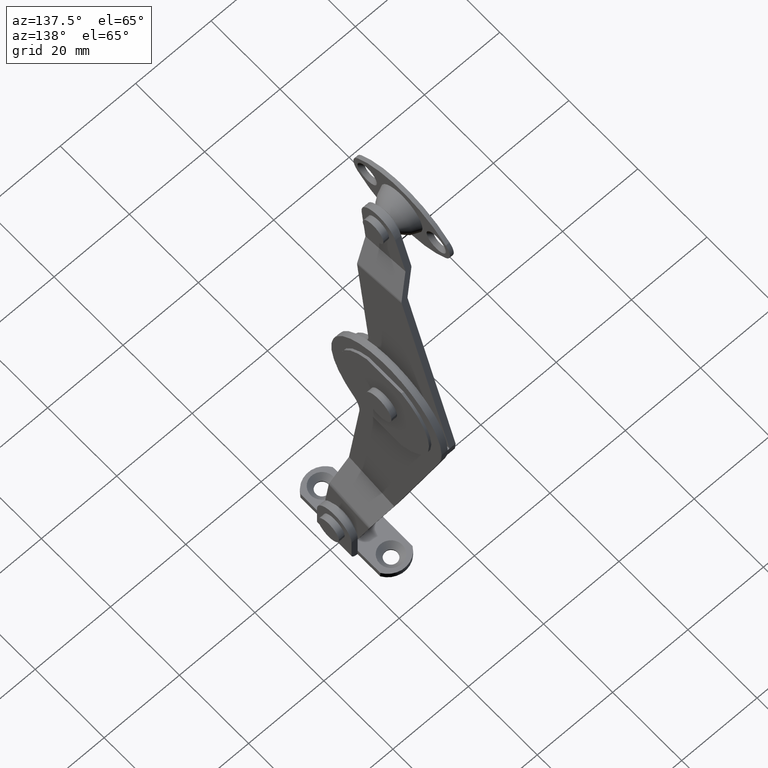
[diagram: clean part render]
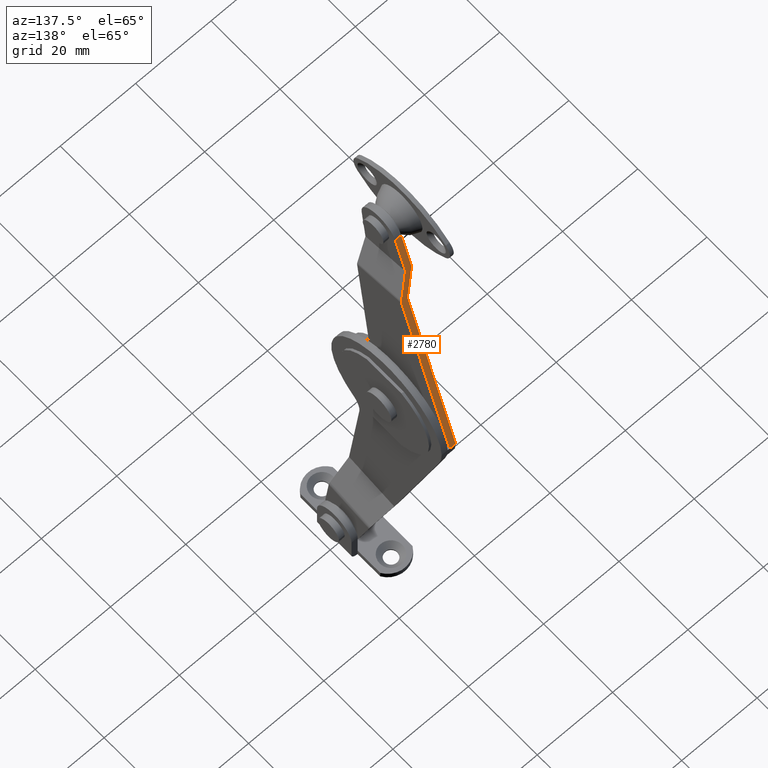
[diagram: same view with one face highlighted and labeled with its STEP entity id]
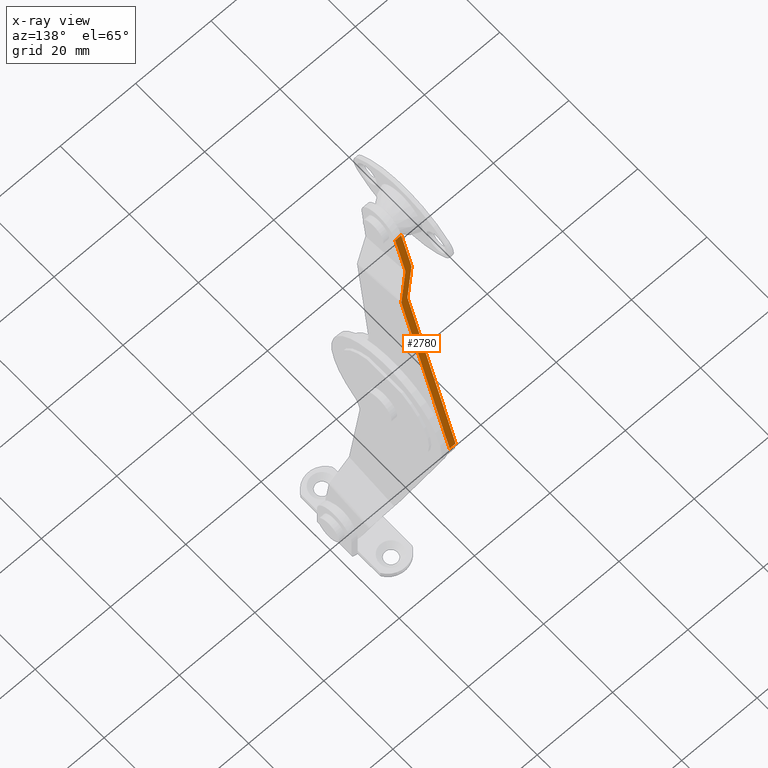
[diagram: x-ray of the same camera — body ghosted, the highlighted face saturated]
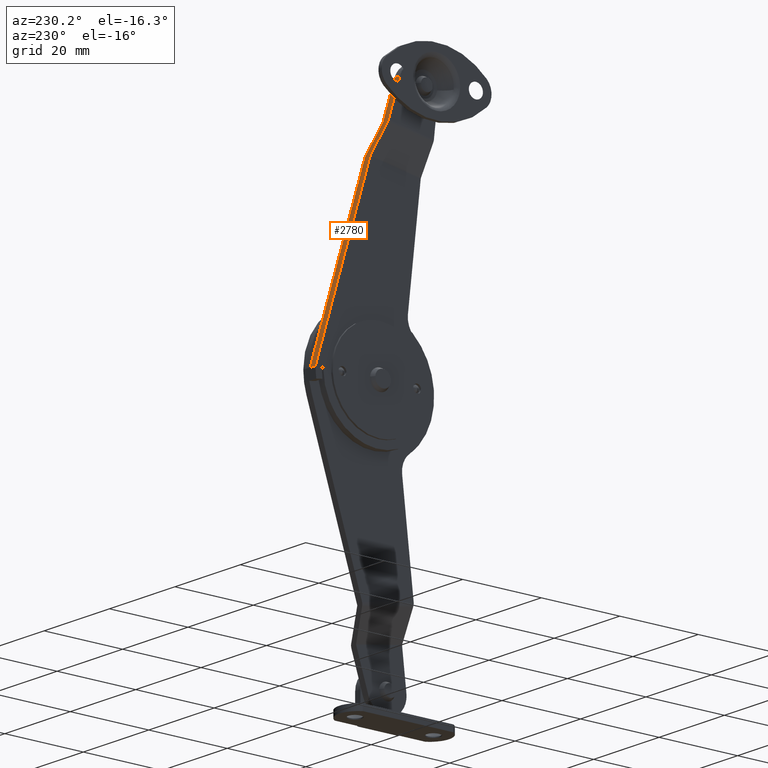
[diagram: same view with one face highlighted and labeled with its STEP entity id]
A machine part, auxiliary view. The second image highlights one B-rep face of the part: STEP entity #2780.
The next image is the same camera in x-ray: the body ghosted, the highlighted face saturated — about 0% of this face is hidden behind the body in this view.
A second angle (auxiliary view) of the same face is appended — the face is thin or edge-on in the first view.
In plain terms, the highlighted face is a freeform B-spline surface patch.
Its self-contained STEP definition (entity closure, byte-faithful):
#2360=CARTESIAN_POINT('',(5.625915208843059,7.831165108763541,52.026701515213396));
#2361=VERTEX_POINT('',#2360);
#2362=CARTESIAN_POINT('',(5.500000000000000,7.647203473211660,52.626014567876297));
#2363=VERTEX_POINT('',#2362);
#2364=CARTESIAN_POINT('',(5.625915208842979,7.831165108763527,52.026701515213396));
#2365=CARTESIAN_POINT('',(5.500000000000001,7.742951846102899,52.314084042401142));
#2366=CARTESIAN_POINT('',(5.500000000000001,7.647203473211630,52.626014567876297));
#2374=(BOUNDED_CURVE()B_SPLINE_CURVE(2,(#2364,#2365,#2366),.UNSPECIFIED.,.F.,.U.)CURVE()GEOMETRIC_REPRESENTATION_ITEM()QUASI_UNIFORM_CURVE()RATIONAL_B_SPLINE_CURVE((1.0,0.980128306517642,1.0))REPRESENTATION_ITEM(''));
#2375=EDGE_CURVE('',#2361,#2363,#2374,.T.);
#2421=CARTESIAN_POINT('',(9.974083791157110,9.756468010732030,45.754420036426701));
#2422=VERTEX_POINT('',#2421);
#2423=CARTESIAN_POINT('',(10.099999000000020,9.940429646283869,45.155106983764000));
#2424=VERTEX_POINT('',#2423);
#2425=CARTESIAN_POINT('',(9.974083791157110,9.756468010732030,45.754420036426701));
#2426=CARTESIAN_POINT('',(10.099999000000000,9.844681273392677,45.467037509238942));
#2427=CARTESIAN_POINT('',(10.099999000000000,9.940429646283880,45.155106983764000));
#2435=(BOUNDED_CURVE()B_SPLINE_CURVE(2,(#2425,#2426,#2427),.UNSPECIFIED.,.F.,.U.)CURVE()GEOMETRIC_REPRESENTATION_ITEM()QUASI_UNIFORM_CURVE()RATIONAL_B_SPLINE_CURVE((1.0,0.980128306517353,1.0))REPRESENTATION_ITEM(''));
#2436=EDGE_CURVE('',#2422,#2424,#2435,.T.);
#2481=CARTESIAN_POINT('',(8.499998999999999,9.844681273392551,45.467037509238899));
#2482=VERTEX_POINT('',#2481);
#2483=CARTESIAN_POINT('',(5.625915208843059,7.831165108763541,52.026701515213396));
#2484=CARTESIAN_POINT('',(8.499998999999999,9.844681273392551,45.467037509238899));
#2485=QUASI_UNIFORM_CURVE('',1,(#2483,#2484),.UNSPECIFIED.,.F.,.U.);
#2486=EDGE_CURVE('',#2361,#2482,#2485,.T.);
#2509=CARTESIAN_POINT('',(8.499998999999999,23.800977647607802,1.457332E-015));
#2510=VERTEX_POINT('',#2509);
#2511=CARTESIAN_POINT('',(8.499998999999999,9.844681273392551,45.467037509238899));
#2512=CARTESIAN_POINT('',(8.499998999999999,23.800977647607802,1.457332E-015));
#2513=QUASI_UNIFORM_CURVE('',1,(#2511,#2512),.UNSPECIFIED.,.F.,.U.);
#2514=EDGE_CURVE('',#2482,#2510,#2513,.T.);
#2577=CARTESIAN_POINT('',(7.100000000000001,7.742951846102890,52.314084042401099));
#2578=VERTEX_POINT('',#2577);
#2579=CARTESIAN_POINT('',(7.100000000000001,7.742951846102890,52.314084042401099));
#2580=CARTESIAN_POINT('',(9.974083791157110,9.756468010732030,45.754420036426701));
#2581=QUASI_UNIFORM_CURVE('',1,(#2579,#2580),.UNSPECIFIED.,.F.,.U.);
#2582=EDGE_CURVE('',#2578,#2422,#2581,.T.);
#2597=CARTESIAN_POINT('',(10.099999000000020,23.800977647607802,1.457341E-015));
#2598=VERTEX_POINT('',#2597);
#2599=CARTESIAN_POINT('',(10.099999000000020,23.800977647607802,1.457341E-015));
#2600=CARTESIAN_POINT('',(10.099999000000020,9.940429646283869,45.155106983764000));
#2601=QUASI_UNIFORM_CURVE('',1,(#2599,#2600),.UNSPECIFIED.,.F.,.U.);
#2602=EDGE_CURVE('',#2598,#2424,#2601,.T.);
#2680=CARTESIAN_POINT('',(7.100000000000001,4.780032000000240,61.966729999999998));
#2681=VERTEX_POINT('',#2680);
#2697=CARTESIAN_POINT('',(5.500000000000000,4.780032000000230,61.966729999999998));
#2698=VERTEX_POINT('',#2697);
#2699=CARTESIAN_POINT('',(7.100000000000001,4.780032000000240,61.966729999999998));
#2700=CARTESIAN_POINT('',(5.500000000000000,4.780032000000230,61.966729999999998));
#2701=QUASI_UNIFORM_CURVE('',1,(#2699,#2700),.UNSPECIFIED.,.F.,.U.);
#2702=EDGE_CURVE('',#2681,#2698,#2701,.T.);
#2734=CARTESIAN_POINT('',(5.500000000000000,7.647203473211660,52.626014567876297));
#2735=CARTESIAN_POINT('',(5.500000000000000,4.780032000000230,61.966729999999998));
#2736=QUASI_UNIFORM_CURVE('',1,(#2734,#2735),.UNSPECIFIED.,.F.,.U.);
#2737=EDGE_CURVE('',#2363,#2698,#2736,.T.);
#2755=CARTESIAN_POINT('',(5.270230042431263,3.829936337433607,65.061966298298486));
#2756=CARTESIAN_POINT('',(5.270230042431263,24.751074330537470,-3.095239622452916));
#2757=CARTESIAN_POINT('',(10.329769409967920,3.829936337433607,65.061966298298486));
#2758=CARTESIAN_POINT('',(10.329769409967920,24.751074330537470,-3.095239622452915));
#2759=B_SPLINE_SURFACE_WITH_KNOTS('',1,1,((#2755,#2757),(#2756,#2758)),.UNSPECIFIED.,.F.,.F.,.U.,(2,2),(2,2),(0.0,71.295853552995666),(0.0,5.059539367536654),.UNSPECIFIED.);
#2760=ORIENTED_EDGE('',*,*,#2582,.T.);
#2761=ORIENTED_EDGE('',*,*,#2436,.T.);
#2762=ORIENTED_EDGE('',*,*,#2602,.F.);
#2763=CARTESIAN_POINT('',(10.099999000000020,23.800977647607802,1.457341E-015));
#2764=CARTESIAN_POINT('',(8.499998999999999,23.800977647607802,1.457332E-015));
#2765=QUASI_UNIFORM_CURVE('',1,(#2763,#2764),.UNSPECIFIED.,.F.,.U.);
#2766=EDGE_CURVE('',#2598,#2510,#2765,.T.);
#2767=ORIENTED_EDGE('',*,*,#2766,.T.);
#2768=ORIENTED_EDGE('',*,*,#2514,.F.);
#2769=ORIENTED_EDGE('',*,*,#2486,.F.);
#2770=ORIENTED_EDGE('',*,*,#2375,.T.);
#2771=ORIENTED_EDGE('',*,*,#2737,.T.);
#2772=ORIENTED_EDGE('',*,*,#2702,.F.);
#2773=CARTESIAN_POINT('',(7.100000000000001,4.780032000000240,61.966729999999998));
#2774=CARTESIAN_POINT('',(7.100000000000001,7.742951846102890,52.314084042401099));
#2775=QUASI_UNIFORM_CURVE('',1,(#2773,#2774),.UNSPECIFIED.,.F.,.U.);
#2776=EDGE_CURVE('',#2681,#2578,#2775,.T.);
#2777=ORIENTED_EDGE('',*,*,#2776,.T.);
#2778=EDGE_LOOP('',(#2760,#2761,#2762,#2767,#2768,#2769,#2770,#2771,#2772,#2777));
#2779=FACE_OUTER_BOUND('',#2778,.T.);
#2780=ADVANCED_FACE('',(#2779),#2759,.F.);